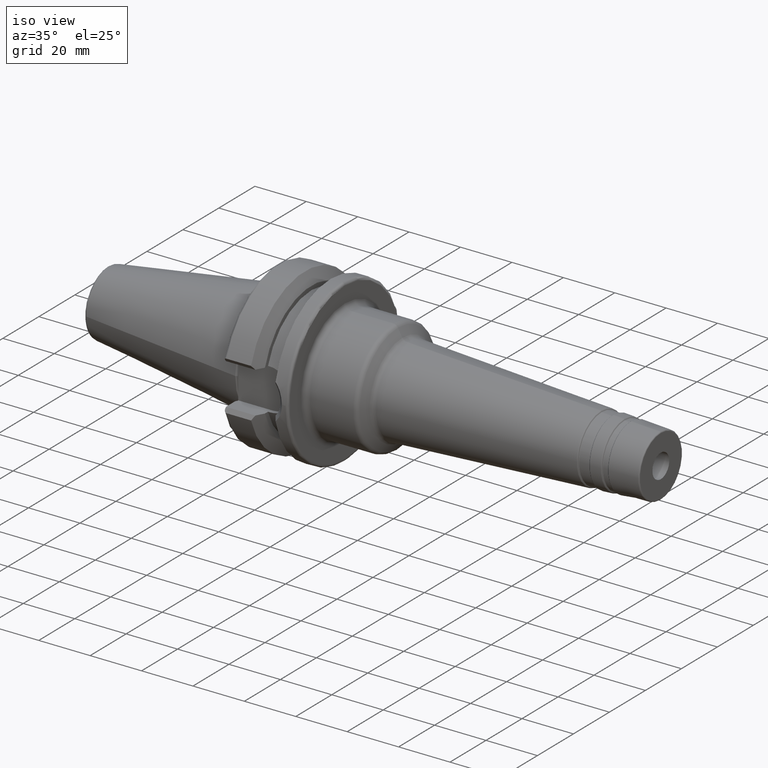
[diagram: clean part render]
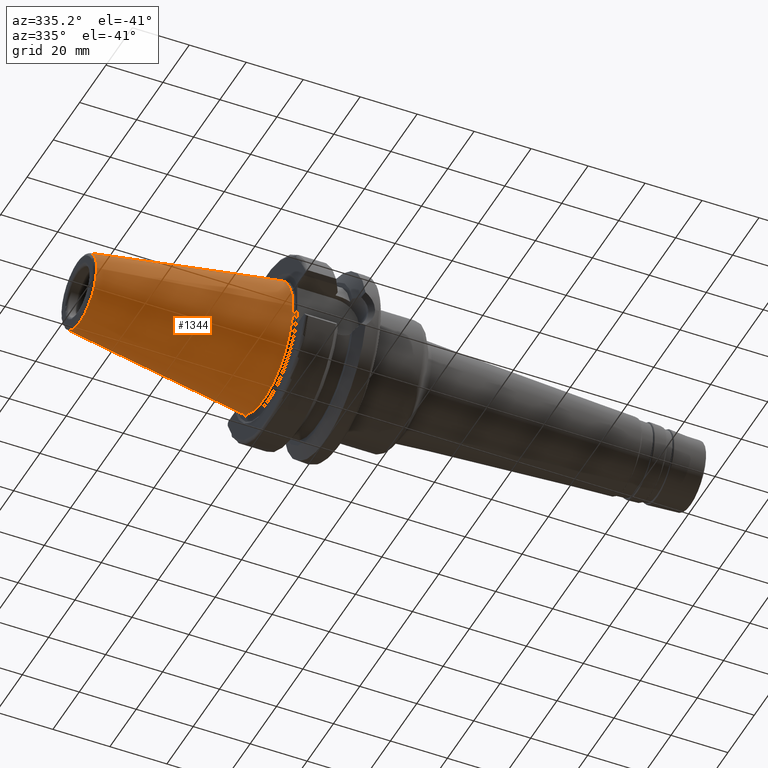
[diagram: tour spotlight — one face highlighted and labeled with its STEP entity id]
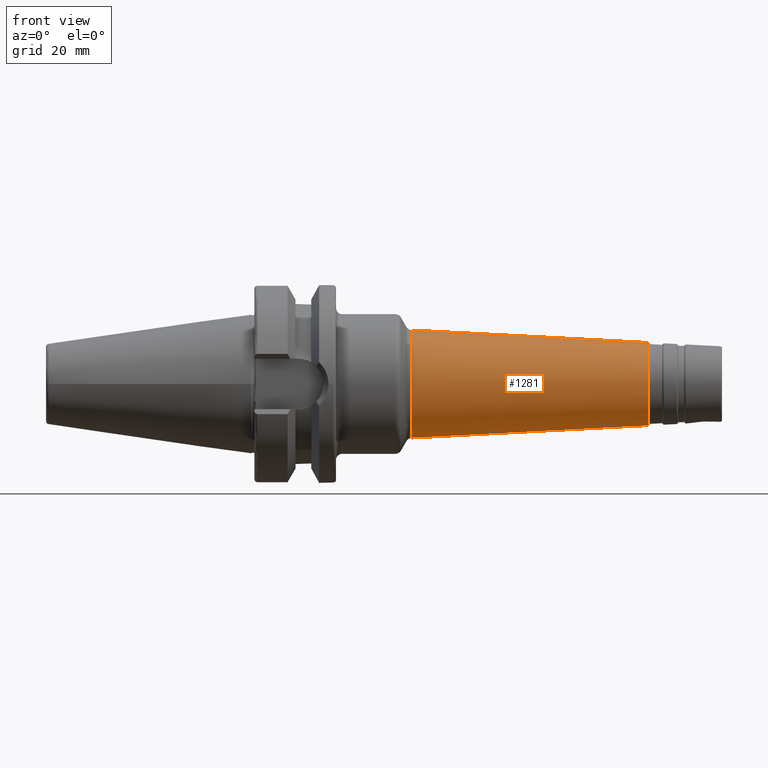
[diagram: tour spotlight — one face highlighted and labeled with its STEP entity id]
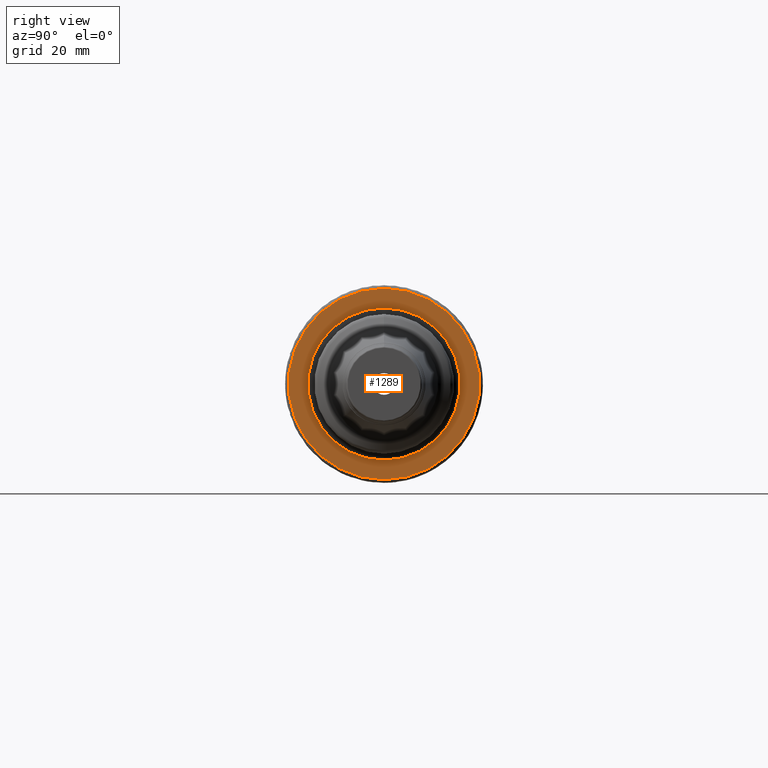
[diagram: tour spotlight — one face highlighted and labeled with its STEP entity id]
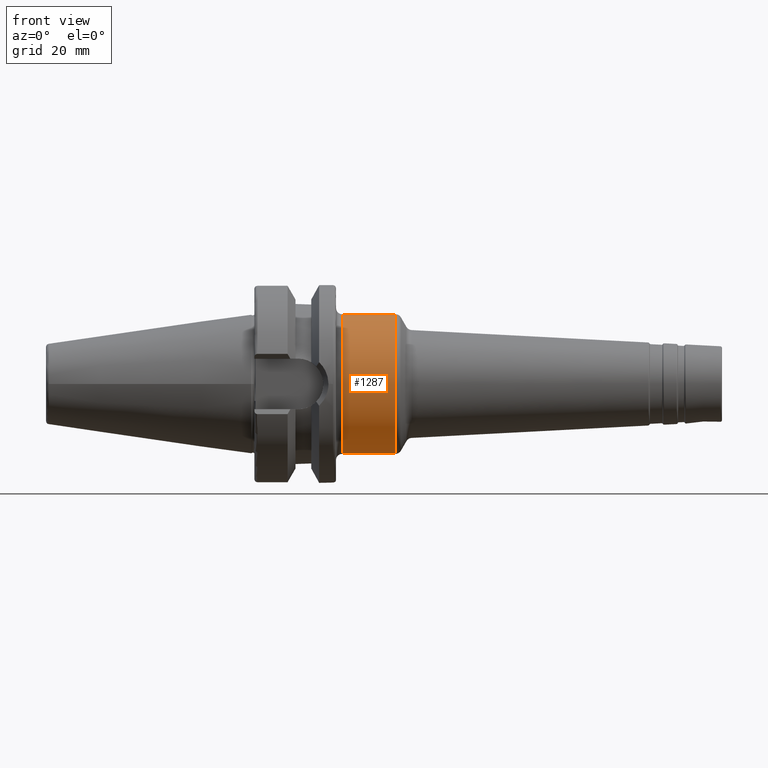
[diagram: tour spotlight — one face highlighted and labeled with its STEP entity id]
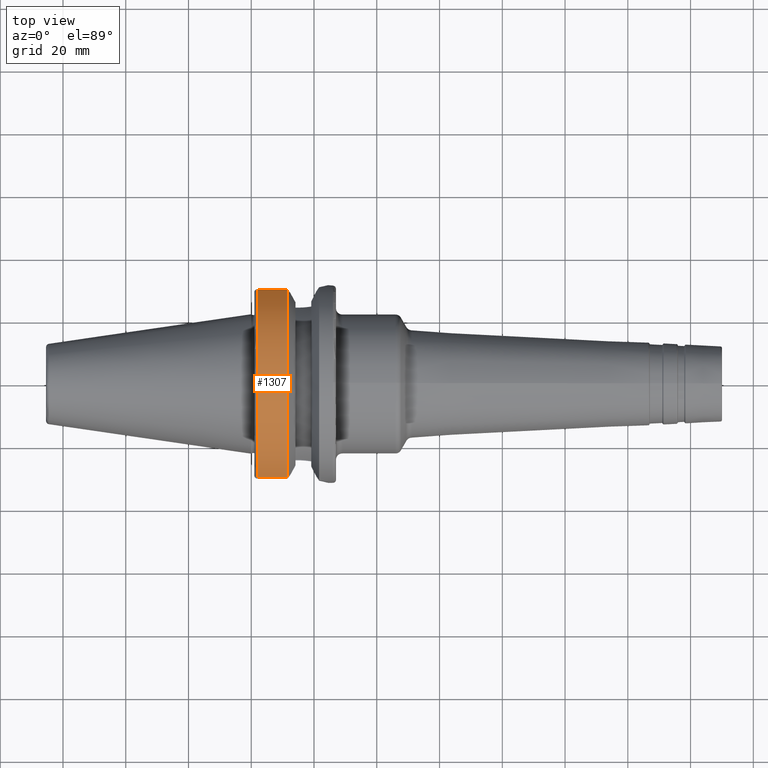
[diagram: tour spotlight — one face highlighted and labeled with its STEP entity id]
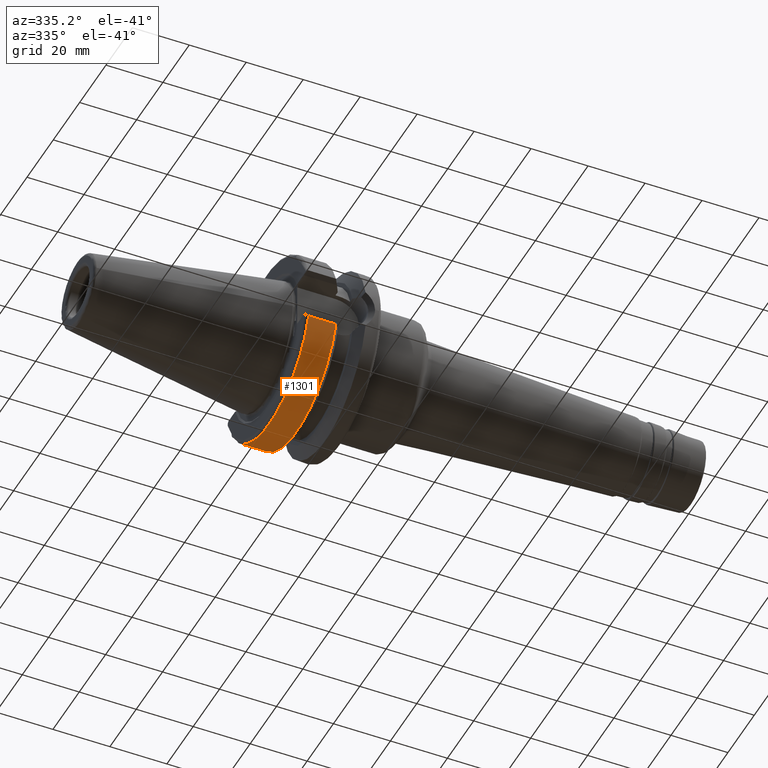
[diagram: tour spotlight — one face highlighted and labeled with its STEP entity id]
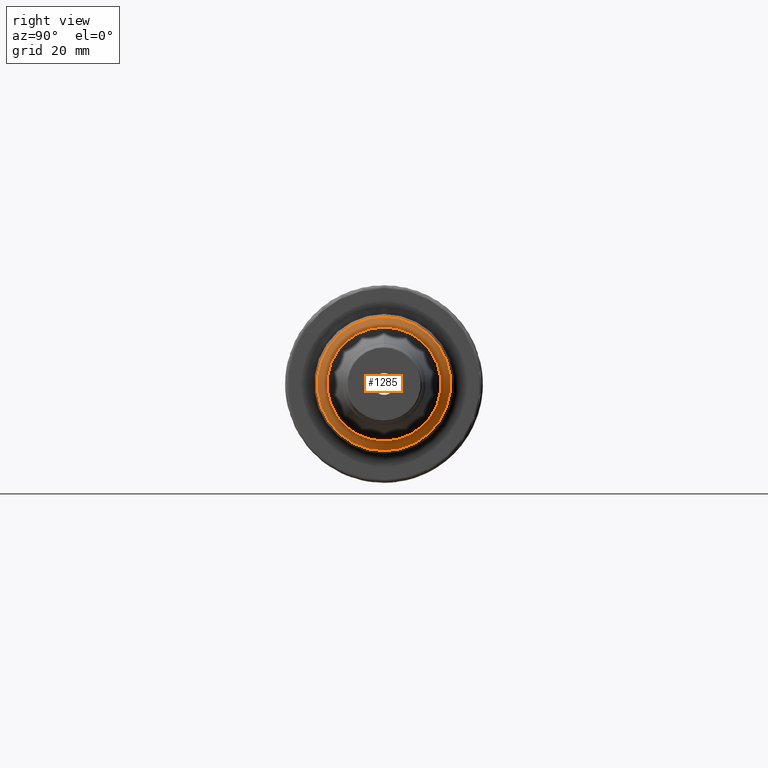
[diagram: tour spotlight — one face highlighted and labeled with its STEP entity id]
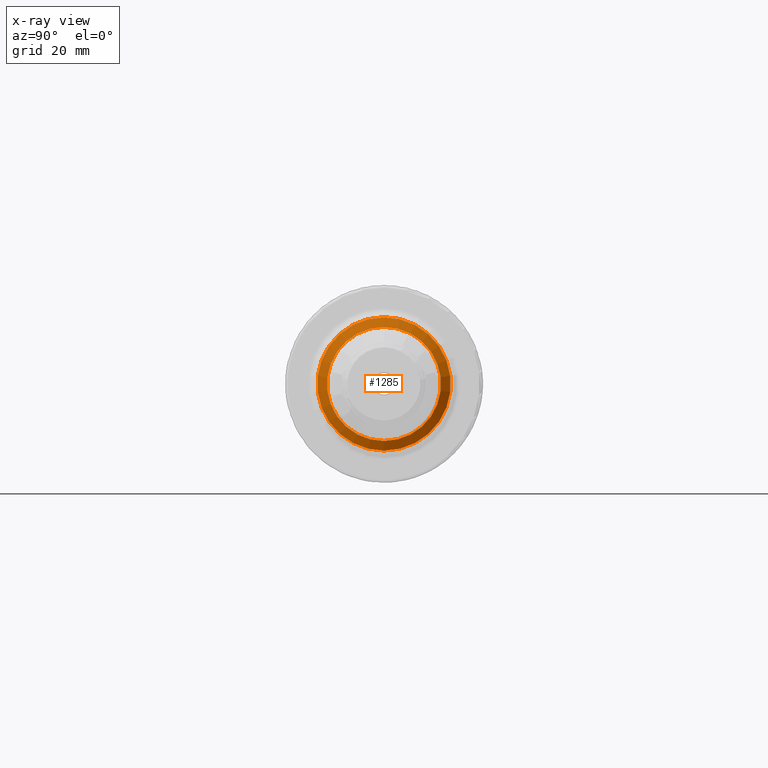
[diagram: x-ray of the same camera — body ghosted, this tour face saturated]
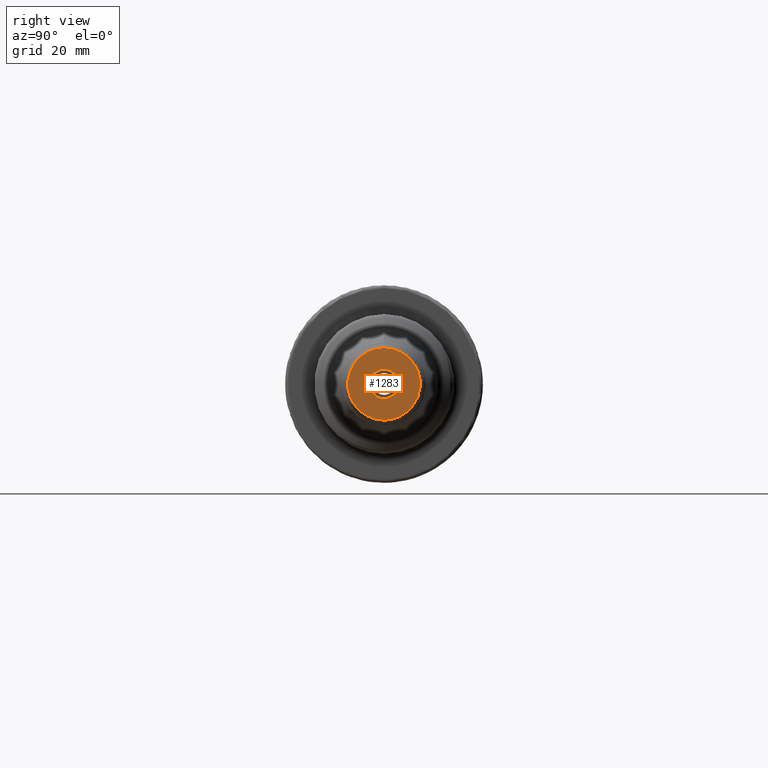
[diagram: tour spotlight — one face highlighted and labeled with its STEP entity id]
A machine part: a face-by-face anatomy tour. The part has 83 B-rep faces; the first image is the clean iso view, then the 8 largest visible faces are spotlighted one at a time (largest first), each with its STEP entity span.

Face 1 — auxiliary view, entity #1344. In plain terms, the highlighted conical surface has half-angle 8.297 deg.
Definition (entity closure, byte-faithful):
#165=LINE('',#2617,#236);
#236=VECTOR('',#1955,17.5186442890469);
#259=CONICAL_SURFACE('',#1538,17.5186442890469,0.144812498238939);
#340=FACE_OUTER_BOUND('',#429,.T.);
#429=EDGE_LOOP('',(#1226,#1227,#1228,#1229,#1230));
#520=CIRCLE('',#1535,12.8122885780937);
#521=CIRCLE('',#1536,12.8122885780937);
#523=CIRCLE('',#1539,22.225);
#644=VERTEX_POINT('',#2609);
#645=VERTEX_POINT('',#2610);
#646=VERTEX_POINT('',#2615);
#838=EDGE_CURVE('',#644,#645,#520,.T.);
#839=EDGE_CURVE('',#645,#644,#521,.T.);
#841=EDGE_CURVE('',#646,#646,#523,.T.);
#842=EDGE_CURVE('',#646,#644,#165,.T.);
#1226=ORIENTED_EDGE('',*,*,#841,.F.);
#1227=ORIENTED_EDGE('',*,*,#842,.T.);
#1228=ORIENTED_EDGE('',*,*,#838,.T.);
#1229=ORIENTED_EDGE('',*,*,#839,.T.);
#1230=ORIENTED_EDGE('',*,*,#842,.F.);
#1344=ADVANCED_FACE('',(#340),#259,.T.);
#1535=AXIS2_PLACEMENT_3D('',#2611,#1945,#1946);
#1536=AXIS2_PLACEMENT_3D('',#2612,#1947,#1948);
#1538=AXIS2_PLACEMENT_3D('',#2614,#1951,#1952);
#1539=AXIS2_PLACEMENT_3D('',#2616,#1953,#1954);
#1945=DIRECTION('center_axis',(1.,0.,0.));
#1946=DIRECTION('ref_axis',(0.,0.,-1.));
#1947=DIRECTION('center_axis',(1.,0.,0.));
#1948=DIRECTION('ref_axis',(0.,0.,-1.));
#1951=DIRECTION('center_axis',(1.,0.,0.));
#1952=DIRECTION('ref_axis',(0.,1.,0.));
#1953=DIRECTION('center_axis',(1.,0.,0.));
#1954=DIRECTION('ref_axis',(0.,0.,-1.));
#1955=DIRECTION('',(-0.989532981063281,0.144306893071729,1.76724974695192E-17));
#2609=CARTESIAN_POINT('',(-64.5443068930717,-12.8122885780937,-1.56905281969147E-15));
#2610=CARTESIAN_POINT('',(-64.5443068930717,-1.56905281969147E-15,12.8122885780937));
#2611=CARTESIAN_POINT('Origin',(-64.5443068930717,0.,0.));
#2612=CARTESIAN_POINT('Origin',(-64.5443068930717,0.,0.));
#2614=CARTESIAN_POINT('Origin',(-32.2721534465359,0.,0.));
#2615=CARTESIAN_POINT('',(4.44089209850063E-15,-22.225,-2.72177751110499E-15));
#2616=CARTESIAN_POINT('Origin',(0.,0.,0.));
#2617=CARTESIAN_POINT('',(-32.2721534465359,-17.5186442890469,-2.14541516539823E-15));

Face 2 — front view, entity #1281. In plain terms, the highlighted conical surface has half-angle 3 deg.
Definition (entity closure, byte-faithful):
#105=LINE('',#2041,#176);
#176=VECTOR('',#1641,15.2295517409819);
#247=CONICAL_SURFACE('',#1412,15.2295517409819,0.0523598775598295);
#277=FACE_OUTER_BOUND('',#360,.T.);
#360=EDGE_LOOP('',(#913,#914,#915,#916));
#457=CIRCLE('',#1411,13.2304120250298);
#458=CIRCLE('',#1413,17.1839457168278);
#544=VERTEX_POINT('',#2036);
#545=VERTEX_POINT('',#2040);
#682=EDGE_CURVE('',#544,#544,#457,.T.);
#683=EDGE_CURVE('',#544,#545,#105,.T.);
#684=EDGE_CURVE('',#545,#545,#458,.T.);
#913=ORIENTED_EDGE('',*,*,#682,.F.);
#914=ORIENTED_EDGE('',*,*,#683,.T.);
#915=ORIENTED_EDGE('',*,*,#684,.F.);
#916=ORIENTED_EDGE('',*,*,#683,.F.);
#1281=ADVANCED_FACE('',(#277),#247,.T.);
#1411=AXIS2_PLACEMENT_3D('',#2038,#1637,#1638);
#1412=AXIS2_PLACEMENT_3D('',#2039,#1639,#1640);
#1413=AXIS2_PLACEMENT_3D('',#2042,#1642,#1643);
#1637=DIRECTION('center_axis',(1.,0.,0.));
#1638=DIRECTION('ref_axis',(0.,0.,1.));
#1639=DIRECTION('center_axis',(-1.,0.,0.));
#1640=DIRECTION('ref_axis',(0.,0.,-1.));
#1641=DIRECTION('',(-0.998629534754574,-6.40930612932367E-18,0.0523359562429435));
#1642=DIRECTION('center_axis',(-1.,0.,0.));
#1643=DIRECTION('ref_axis',(0.,0.,1.));
#2036=CARTESIAN_POINT('',(126.522339968181,-1.62025817378534E-15,13.2304120250298));
#2038=CARTESIAN_POINT('Origin',(126.522339968181,-1.62025817378534E-15,
0.));
#2039=CARTESIAN_POINT('Origin',(88.3764817902327,0.,0.));
#2040=CARTESIAN_POINT('',(51.0844231954446,-2.10442641188351E-15,17.1839457168278));
#2041=CARTESIAN_POINT('',(88.3764817902327,-1.86508217920425E-15,15.2295517409819));
#2042=CARTESIAN_POINT('Origin',(51.0844231954446,-2.10442641188351E-15,
0.));

Face 3 — right view, entity #1289. In plain terms, the highlighted planar face has unit normal (1, 0, 0).
Definition (entity closure, byte-faithful):
#68=FACE_BOUND('',#370,.T.);
#74=PLANE('',#1433);
#285=FACE_OUTER_BOUND('',#369,.T.);
#369=EDGE_LOOP('',(#945));
#370=EDGE_LOOP('',(#946));
#470=CIRCLE('',#1432,24.25);
#471=CIRCLE('',#1434,30.5);
#553=VERTEX_POINT('',#2069);
#554=VERTEX_POINT('',#2073);
#698=EDGE_CURVE('',#553,#553,#470,.T.);
#699=EDGE_CURVE('',#554,#554,#471,.T.);
#945=ORIENTED_EDGE('',*,*,#699,.T.);
#946=ORIENTED_EDGE('',*,*,#698,.F.);
#1289=ADVANCED_FACE('',(#285,#68),#74,.T.);
#1432=AXIS2_PLACEMENT_3D('',#2071,#1682,#1683);
#1433=AXIS2_PLACEMENT_3D('',#2072,#1684,#1685);
#1434=AXIS2_PLACEMENT_3D('',#2074,#1686,#1687);
#1682=DIRECTION('center_axis',(1.,0.,0.));
#1683=DIRECTION('ref_axis',(0.,-1.22464679914735E-16,1.));
#1684=DIRECTION('center_axis',(1.,0.,0.));
#1685=DIRECTION('ref_axis',(0.,0.,-1.));
#1686=DIRECTION('center_axis',(1.,0.,0.));
#1687=DIRECTION('ref_axis',(0.,0.,-1.));
#2069=CARTESIAN_POINT('',(27.,5.93953697586466E-15,-24.25));
#2071=CARTESIAN_POINT('Origin',(27.,0.,0.));
#2072=CARTESIAN_POINT('Origin',(27.,0.,0.));
#2073=CARTESIAN_POINT('',(27.,-3.73517273739943E-15,30.5));
#2074=CARTESIAN_POINT('Origin',(27.,0.,0.));

Face 4 — front view, entity #1287. In plain terms, the highlighted cylindrical surface (bore or boss wall) has radius 22.25 mm, axis along (1, 0, 0).
Definition (entity closure, byte-faithful):
#50=CYLINDRICAL_SURFACE('',#1427,22.25);
#107=LINE('',#2064,#178);
#178=VECTOR('',#1673,22.25);
#283=FACE_OUTER_BOUND('',#367,.T.);
#367=EDGE_LOOP('',(#935,#936,#937,#938,#939));
#466=CIRCLE('',#1426,22.25);
#467=CIRCLE('',#1428,22.25);
#468=CIRCLE('',#1429,22.25);
#550=VERTEX_POINT('',#2059);
#551=VERTEX_POINT('',#2063);
#552=VERTEX_POINT('',#2065);
#693=EDGE_CURVE('',#550,#550,#466,.T.);
#694=EDGE_CURVE('',#550,#551,#107,.T.);
#695=EDGE_CURVE('',#552,#551,#467,.T.);
#696=EDGE_CURVE('',#551,#552,#468,.T.);
#935=ORIENTED_EDGE('',*,*,#693,.F.);
#936=ORIENTED_EDGE('',*,*,#694,.T.);
#937=ORIENTED_EDGE('',*,*,#695,.F.);
#938=ORIENTED_EDGE('',*,*,#696,.F.);
#939=ORIENTED_EDGE('',*,*,#694,.F.);
#1287=ADVANCED_FACE('',(#283),#50,.T.);
#1426=AXIS2_PLACEMENT_3D('',#2061,#1669,#1670);
#1427=AXIS2_PLACEMENT_3D('',#2062,#1671,#1672);
#1428=AXIS2_PLACEMENT_3D('',#2066,#1674,#1675);
#1429=AXIS2_PLACEMENT_3D('',#2067,#1676,#1677);
#1669=DIRECTION('center_axis',(1.,0.,0.));
#1670=DIRECTION('ref_axis',(0.,1.22464679914735E-16,1.));
#1671=DIRECTION('center_axis',(1.,0.,0.));
#1672=DIRECTION('ref_axis',(0.,0.,-1.));
#1673=DIRECTION('',(-1.,0.,0.));
#1674=DIRECTION('center_axis',(-1.,0.,0.));
#1675=DIRECTION('ref_axis',(0.,-1.22464679914735E-16,1.));
#1676=DIRECTION('center_axis',(-1.,0.,0.));
#1677=DIRECTION('ref_axis',(0.,-1.22464679914735E-16,1.));
#2059=CARTESIAN_POINT('',(45.9532237500965,-2.72483912810286E-15,22.25));
#2061=CARTESIAN_POINT('Origin',(45.9532237500965,0.,0.));
#2062=CARTESIAN_POINT('Origin',(37.0539621442379,0.,0.));
#2063=CARTESIAN_POINT('',(29.,-2.72483912810286E-15,22.25));
#2064=CARTESIAN_POINT('',(37.0539621442379,-2.72483912810286E-15,22.25));
#2065=CARTESIAN_POINT('',(29.,0.,-22.25));
#2066=CARTESIAN_POINT('Origin',(29.,0.,0.));
#2067=CARTESIAN_POINT('Origin',(29.,0.,0.));

Face 5 — top view, entity #1307. In plain terms, the highlighted cylindrical surface (partial cylindrical patch) has radius 31.5 mm, axis along (1, 0, 0).
Definition (entity closure, byte-faithful):
#57=CYLINDRICAL_SURFACE('',#1471,31.5);
#121=LINE('',#2297,#192);
#127=LINE('',#2338,#198);
#192=VECTOR('',#1763,10.);
#198=VECTOR('',#1783,10.);
#303=FACE_OUTER_BOUND('',#390,.T.);
#390=EDGE_LOOP('',(#1027,#1028,#1029,#1030));
#491=CIRCLE('',#1470,31.5);
#492=CIRCLE('',#1472,31.5000000000001);
#587=VERTEX_POINT('',#2292);
#588=VERTEX_POINT('',#2296);
#595=VERTEX_POINT('',#2323);
#596=VERTEX_POINT('',#2336);
#743=EDGE_CURVE('',#587,#588,#121,.T.);
#752=EDGE_CURVE('',#595,#588,#491,.T.);
#754=EDGE_CURVE('',#596,#587,#492,.T.);
#755=EDGE_CURVE('',#595,#596,#127,.T.);
#1027=ORIENTED_EDGE('',*,*,#743,.F.);
#1028=ORIENTED_EDGE('',*,*,#754,.F.);
#1029=ORIENTED_EDGE('',*,*,#755,.F.);
#1030=ORIENTED_EDGE('',*,*,#752,.T.);
#1307=ADVANCED_FACE('',(#303),#57,.T.);
#1470=AXIS2_PLACEMENT_3D('',#2324,#1777,#1778);
#1471=AXIS2_PLACEMENT_3D('',#2335,#1779,#1780);
#1472=AXIS2_PLACEMENT_3D('',#2337,#1781,#1782);
#1763=DIRECTION('',(-1.,0.,0.));
#1777=DIRECTION('center_axis',(1.,0.,0.));
#1778=DIRECTION('ref_axis',(0.,0.,-1.));
#1779=DIRECTION('center_axis',(1.,0.,0.));
#1780=DIRECTION('ref_axis',(0.,1.,0.));
#1781=DIRECTION('center_axis',(1.,0.,0.));
#1782=DIRECTION('ref_axis',(0.,0.,-1.));
#1783=DIRECTION('',(1.,0.,0.));
#2292=CARTESIAN_POINT('',(11.5690363073381,-30.0059801089944,9.58598757033588));
#2296=CARTESIAN_POINT('',(1.99999999999999,-30.0059801089944,9.58598757033586));
#2297=CARTESIAN_POINT('',(6.78451815366905,-30.0059801089944,9.58598757033587));
#2323=CARTESIAN_POINT('',(1.99999999999999,30.0059801089944,9.58598757033586));
#2324=CARTESIAN_POINT('Origin',(1.99999999999999,0.,0.));
#2335=CARTESIAN_POINT('Origin',(6.78451815366905,0.,0.));
#2336=CARTESIAN_POINT('',(11.5690363073381,30.0059801089944,9.58598757033588));
#2337=CARTESIAN_POINT('Origin',(11.5690363073381,0.,0.));
#2338=CARTESIAN_POINT('',(6.78451815366905,30.0059801089944,9.58598757033587));

Face 6 — auxiliary view, entity #1301. In plain terms, the highlighted cylindrical surface (partial cylindrical patch) has radius 31.5 mm, axis along (1, 0, 0).
Definition (entity closure, byte-faithful):
#56=CYLINDRICAL_SURFACE('',#1458,31.5);
#114=LINE('',#2255,#185);
#117=LINE('',#2267,#188);
#185=VECTOR('',#1740,10.);
#188=VECTOR('',#1747,10.);
#297=FACE_OUTER_BOUND('',#384,.T.);
#384=EDGE_LOOP('',(#998,#999,#1000,#1001));
#485=CIRCLE('',#1459,31.5);
#486=CIRCLE('',#1460,31.5000000000001);
#576=VERTEX_POINT('',#2243);
#577=VERTEX_POINT('',#2254);
#580=VERTEX_POINT('',#2264);
#581=VERTEX_POINT('',#2266);
#729=EDGE_CURVE('',#576,#577,#114,.T.);
#733=EDGE_CURVE('',#576,#580,#485,.T.);
#734=EDGE_CURVE('',#581,#580,#117,.T.);
#735=EDGE_CURVE('',#577,#581,#486,.T.);
#998=ORIENTED_EDGE('',*,*,#729,.F.);
#999=ORIENTED_EDGE('',*,*,#733,.T.);
#1000=ORIENTED_EDGE('',*,*,#734,.F.);
#1001=ORIENTED_EDGE('',*,*,#735,.F.);
#1301=ADVANCED_FACE('',(#297),#56,.T.);
#1458=AXIS2_PLACEMENT_3D('',#2263,#1743,#1744);
#1459=AXIS2_PLACEMENT_3D('',#2265,#1745,#1746);
#1460=AXIS2_PLACEMENT_3D('',#2268,#1748,#1749);
#1740=DIRECTION('',(1.,0.,0.));
#1743=DIRECTION('center_axis',(1.,0.,0.));
#1744=DIRECTION('ref_axis',(0.,1.,0.));
#1745=DIRECTION('center_axis',(1.,0.,0.));
#1746=DIRECTION('ref_axis',(0.,0.,-1.));
#1747=DIRECTION('',(-1.,0.,0.));
#1748=DIRECTION('center_axis',(1.,0.,0.));
#1749=DIRECTION('ref_axis',(0.,0.,-1.));
#2243=CARTESIAN_POINT('',(1.99999999999999,-30.0059801089944,-9.58598757033586));
#2254=CARTESIAN_POINT('',(11.5690363073381,-30.0059801089944,-9.58598757033588));
#2255=CARTESIAN_POINT('',(6.78451815366905,-30.0059801089944,-9.58598757033587));
#2263=CARTESIAN_POINT('Origin',(6.78451815366905,0.,0.));
#2264=CARTESIAN_POINT('',(1.99999999999999,30.0059801089944,-9.58598757033586));
#2265=CARTESIAN_POINT('Origin',(1.99999999999999,0.,0.));
#2266=CARTESIAN_POINT('',(11.5690363073381,30.0059801089944,-9.58598757033588));
#2267=CARTESIAN_POINT('',(6.78451815366905,30.0059801089944,-9.58598757033587));
#2268=CARTESIAN_POINT('Origin',(11.5690363073381,0.,0.));

Face 7 — right view, entity #1285. An x-ray twin of the same camera follows (body ghosted, this face saturated) — the face is partly hidden behind the body. In plain terms, the highlighted conical surface has half-angle 60 deg.
Definition (entity closure, byte-faithful):
#106=LINE('',#2056,#177);
#177=VECTOR('',#1662,19.745388964152);
#248=CONICAL_SURFACE('',#1422,19.745388964152,1.0471975511966);
#281=FACE_OUTER_BOUND('',#365,.T.);
#365=EDGE_LOOP('',(#927,#928,#929,#930));
#462=CIRCLE('',#1420,18.181204786337);
#464=CIRCLE('',#1423,21.25);
#548=VERTEX_POINT('',#2051);
#549=VERTEX_POINT('',#2055);
#688=EDGE_CURVE('',#548,#548,#462,.T.);
#690=EDGE_CURVE('',#548,#549,#106,.T.);
#691=EDGE_CURVE('',#549,#549,#464,.T.);
#927=ORIENTED_EDGE('',*,*,#688,.F.);
#928=ORIENTED_EDGE('',*,*,#690,.T.);
#929=ORIENTED_EDGE('',*,*,#691,.F.);
#930=ORIENTED_EDGE('',*,*,#690,.F.);
#1285=ADVANCED_FACE('',(#281),#248,.T.);
#1420=AXIS2_PLACEMENT_3D('',#2052,#1656,#1657);
#1422=AXIS2_PLACEMENT_3D('',#2054,#1660,#1661);
#1423=AXIS2_PLACEMENT_3D('',#2057,#1663,#1664);
#1656=DIRECTION('center_axis',(1.,0.,0.));
#1657=DIRECTION('ref_axis',(0.,0.,1.));
#1660=DIRECTION('center_axis',(-1.,0.,0.));
#1661=DIRECTION('ref_axis',(0.,0.,-1.));
#1662=DIRECTION('',(-0.499999999999999,-1.06057523872491E-16,0.866025403784439));
#1663=DIRECTION('center_axis',(-1.,0.,0.));
#1664=DIRECTION('ref_axis',(0.,2.32017913300298E-32,1.));
#2051=CARTESIAN_POINT('',(49.4570443003616,-2.22655542462301E-15,18.181204786337));
#2052=CARTESIAN_POINT('Origin',(49.4570443003616,-2.22655542462301E-15,
0.));
#2054=CARTESIAN_POINT('Origin',(48.5539621442379,0.,0.));
#2055=CARTESIAN_POINT('',(47.6852745576654,-2.60237444818813E-15,21.25));
#2056=CARTESIAN_POINT('',(48.5539621442379,-2.41811273928683E-15,19.745388964152));
#2057=CARTESIAN_POINT('Origin',(47.6852745576654,-2.60237444818813E-15,
0.));

Face 8 — right view, entity #1283. In plain terms, the highlighted planar face has unit normal (1, 0, 0).
Definition (entity closure, byte-faithful):
#67=FACE_BOUND('',#363,.T.);
#73=PLANE('',#1417);
#279=FACE_OUTER_BOUND('',#362,.T.);
#362=EDGE_LOOP('',(#921));
#363=EDGE_LOOP('',(#922));
#459=CIRCLE('',#1415,11.5255177166426);
#461=CIRCLE('',#1418,4.675);
#546=VERTEX_POINT('',#2044);
#547=VERTEX_POINT('',#2048);
#685=EDGE_CURVE('',#546,#546,#459,.T.);
#687=EDGE_CURVE('',#547,#547,#461,.T.);
#921=ORIENTED_EDGE('',*,*,#685,.F.);
#922=ORIENTED_EDGE('',*,*,#687,.F.);
#1283=ADVANCED_FACE('',(#279,#67),#73,.T.);
#1415=AXIS2_PLACEMENT_3D('',#2045,#1646,#1647);
#1417=AXIS2_PLACEMENT_3D('',#2047,#1650,#1651);
#1418=AXIS2_PLACEMENT_3D('',#2049,#1652,#1653);
#1646=DIRECTION('center_axis',(-1.,0.,0.));
#1647=DIRECTION('ref_axis',(0.,1.22464679914735E-16,1.));
#1650=DIRECTION('center_axis',(1.,0.,0.));
#1651=DIRECTION('ref_axis',(0.,0.,-1.));
#1652=DIRECTION('center_axis',(1.,0.,0.));
#1653=DIRECTION('ref_axis',(0.,0.,-1.));
#2044=CARTESIAN_POINT('',(150.,-1.41146883802024E-15,11.5255177166426));
#2045=CARTESIAN_POINT('Origin',(150.,0.,0.));
#2047=CARTESIAN_POINT('Origin',(150.,0.,-4.675));
#2048=CARTESIAN_POINT('',(150.,-5.72522378601388E-16,4.675));
#2049=CARTESIAN_POINT('Origin',(150.,0.,0.));